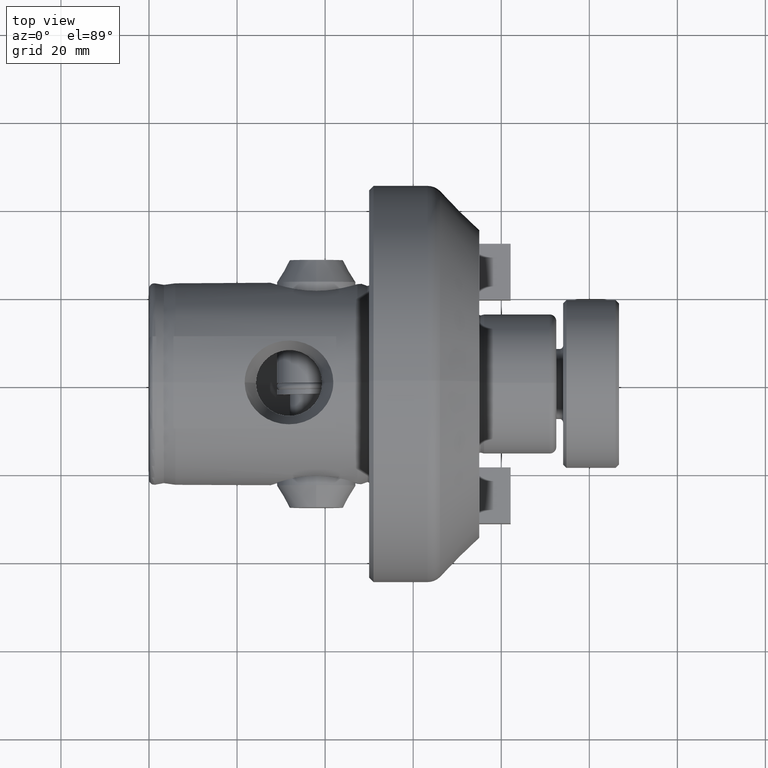
[diagram: clean part render]
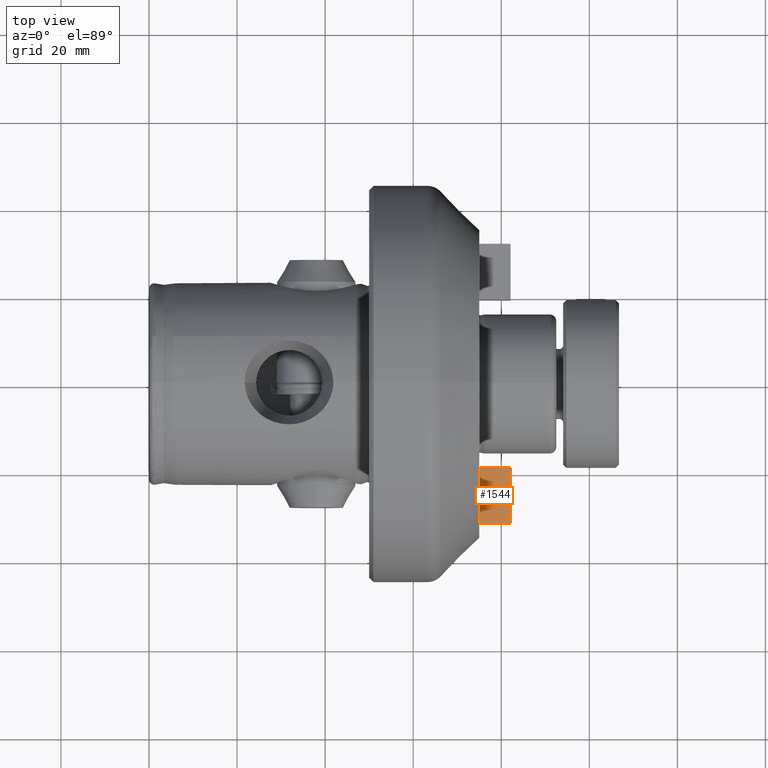
[diagram: same view with one face highlighted and labeled with its STEP entity id]
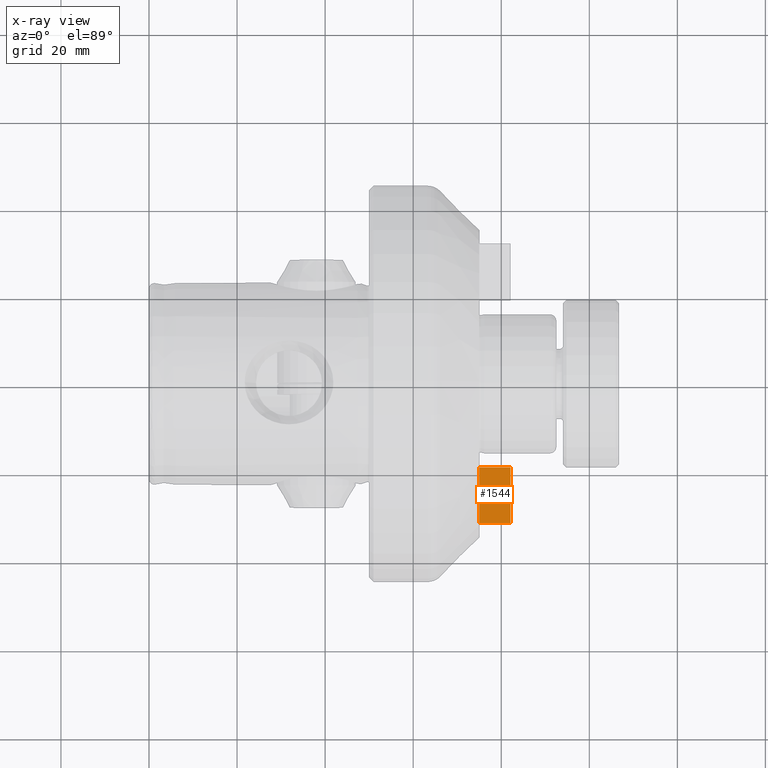
[diagram: x-ray of the same camera — body ghosted, the highlighted face saturated]
A machine part, top view. The second image highlights one B-rep face of the part: STEP entity #1544.
The next image is the same camera in x-ray: the body ghosted, the highlighted face saturated — about 0% of this face is hidden behind the body in this view.
In plain terms, the highlighted planar face has unit normal (0, 0, -1).
Its self-contained STEP definition (entity closure, byte-faithful):
#8 = CARTESIAN_POINT ( 'NONE',  ( 7.143750000000004300, -6.350000000000008500, 6.350000000000005000 ) ) ;
#9 = CARTESIAN_POINT ( 'NONE',  ( 0.0000000000000000000, 6.350000000000008500, 6.350000000000005000 ) ) ;
#19 = CARTESIAN_POINT ( 'NONE',  ( 0.0000000000000000000, -6.350000000000008500, 6.350000000000005000 ) ) ;
#79 = CARTESIAN_POINT ( 'NONE',  ( 7.143750000000004300, 6.350000000000008500, 6.350000000000005000 ) ) ;
#1544 = ADVANCED_FACE ( 'NONE', ( #4182 ), #7958, .F. ) ;
#1943 = EDGE_LOOP ( 'NONE', ( #6036, #6035, #6029, #6028, #6027 ) ) ;
#2444 = VECTOR ( 'NONE', #7238, 1000.000000000000000 ) ;
#2451 = LINE ( 'NONE', #7236, #2444 ) ;
#2567 = LINE ( 'NONE', #7540, #2568 ) ;
#2568 = VECTOR ( 'NONE', #7586, 1000.000000000000000 ) ;
#2974 = EDGE_CURVE ( 'NONE', #8412, #8521, #4524, .T. ) ;
#3183 = EDGE_CURVE ( 'NONE', #8523, #8521, #5732, .T. ) ;
#3185 = EDGE_CURVE ( 'NONE', #8480, #8412, #5736, .T. ) ;
#3269 = EDGE_CURVE ( 'NONE', #8524, #8523, #2451, .T. ) ;
#3357 = EDGE_CURVE ( 'NONE', #8524, #8480, #2567, .T. ) ;
#3721 = DIRECTION ( 'NONE',  ( -1.848892746611744800E-032, -1.000000000000000000, -1.365923996832131600E-016 ) ) ;
#3724 = CARTESIAN_POINT ( 'NONE',  ( 0.0000000000000000000, 6.350000000000008500, 6.350000000000005000 ) ) ;
#3865 = DIRECTION ( 'NONE',  ( -1.000000000000000000, -1.848892746611747500E-032, 1.848892746611747500E-032 ) ) ;
#3866 = CARTESIAN_POINT ( 'NONE',  ( 7.143750000000004300, -6.350000000000008500, 6.350000000000005000 ) ) ;
#4182 = FACE_OUTER_BOUND ( 'NONE', #1943, .T. ) ;
#4518 = VECTOR ( 'NONE', #5239, 1000.000000000000000 ) ;
#4524 = LINE ( 'NONE', #5222, #4518 ) ;
#4912 = CARTESIAN_POINT ( 'NONE',  ( 0.0000000000000000000, 0.0000000000000000000, 6.350000000000005000 ) ) ;
#5193 = DIRECTION ( 'NONE',  ( 1.848892746611744800E-032, 1.365923996832131600E-016, -1.000000000000000000 ) ) ;
#5222 = CARTESIAN_POINT ( 'NONE',  ( 0.0000000000000000000, 6.350000000000008500, 6.350000000000005000 ) ) ;
#5239 = DIRECTION ( 'NONE',  ( -1.848892746611744800E-032, -1.000000000000000000, -1.365923996832131600E-016 ) ) ;
#5257 = DIRECTION ( 'NONE',  ( 1.848892746611744800E-032, 1.000000000000000000, 1.365923996832131600E-016 ) ) ;
#5732 = LINE ( 'NONE', #3866, #5733 ) ;
#5733 = VECTOR ( 'NONE', #3865, 1000.000000000000000 ) ;
#5736 = LINE ( 'NONE', #3724, #5737 ) ;
#5737 = VECTOR ( 'NONE', #3721, 1000.000000000000000 ) ;
#6027 = ORIENTED_EDGE ( 'NONE', *, *, #3357, .T. ) ;
#6028 = ORIENTED_EDGE ( 'NONE', *, *, #3269, .F. ) ;
#6029 = ORIENTED_EDGE ( 'NONE', *, *, #3183, .F. ) ;
#6035 = ORIENTED_EDGE ( 'NONE', *, *, #2974, .T. ) ;
#6036 = ORIENTED_EDGE ( 'NONE', *, *, #3185, .T. ) ;
#7123 = AXIS2_PLACEMENT_3D ( 'NONE', #7976, #5193, #5257 ) ;
#7236 = CARTESIAN_POINT ( 'NONE',  ( 7.143750000000004300, 6.350000000000008500, 6.350000000000005000 ) ) ;
#7238 = DIRECTION ( 'NONE',  ( -1.848892746611744800E-032, -1.000000000000000000, -1.365923996832131600E-016 ) ) ;
#7540 = CARTESIAN_POINT ( 'NONE',  ( 7.143750000000004300, 6.350000000000008500, 6.350000000000005000 ) ) ;
#7586 = DIRECTION ( 'NONE',  ( -1.000000000000000000, -1.848892746611747500E-032, 1.848892746611747500E-032 ) ) ;
#7958 = PLANE ( 'NONE',  #7123 ) ;
#7976 = CARTESIAN_POINT ( 'NONE',  ( 7.143750000000004300, 6.350000000000008500, 6.350000000000005000 ) ) ;
#8412 = VERTEX_POINT ( 'NONE', #4912 ) ;
#8480 = VERTEX_POINT ( 'NONE', #9 ) ;
#8521 = VERTEX_POINT ( 'NONE', #19 ) ;
#8523 = VERTEX_POINT ( 'NONE', #8 ) ;
#8524 = VERTEX_POINT ( 'NONE', #79 ) ;